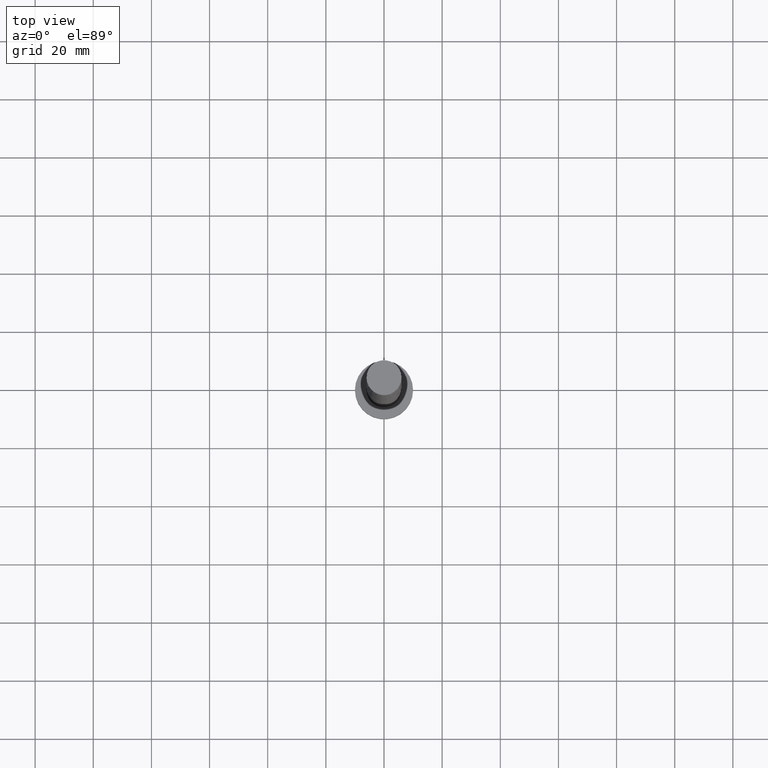
[diagram: clean part render]
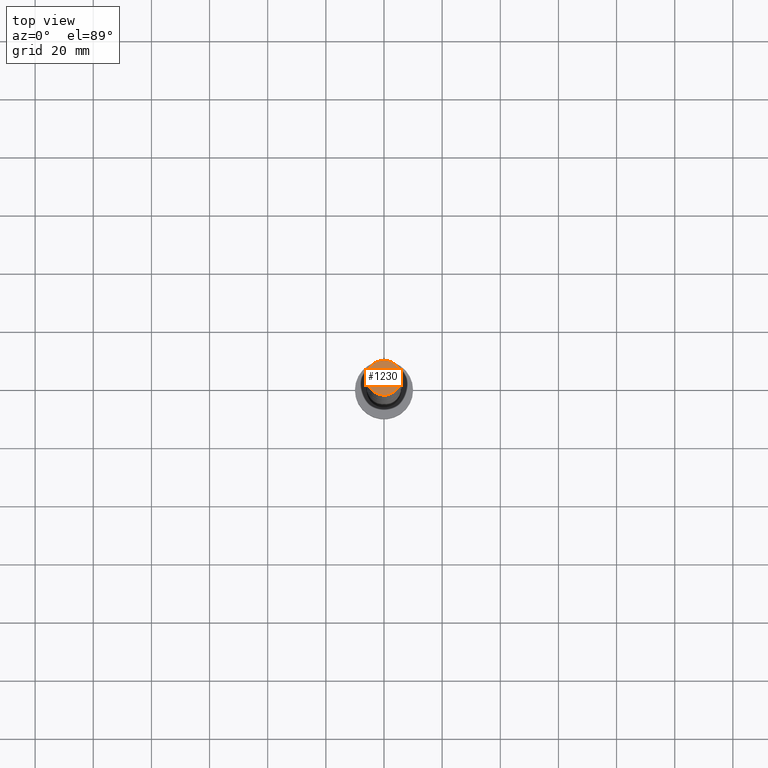
[diagram: same view with one face highlighted and labeled with its STEP entity id]
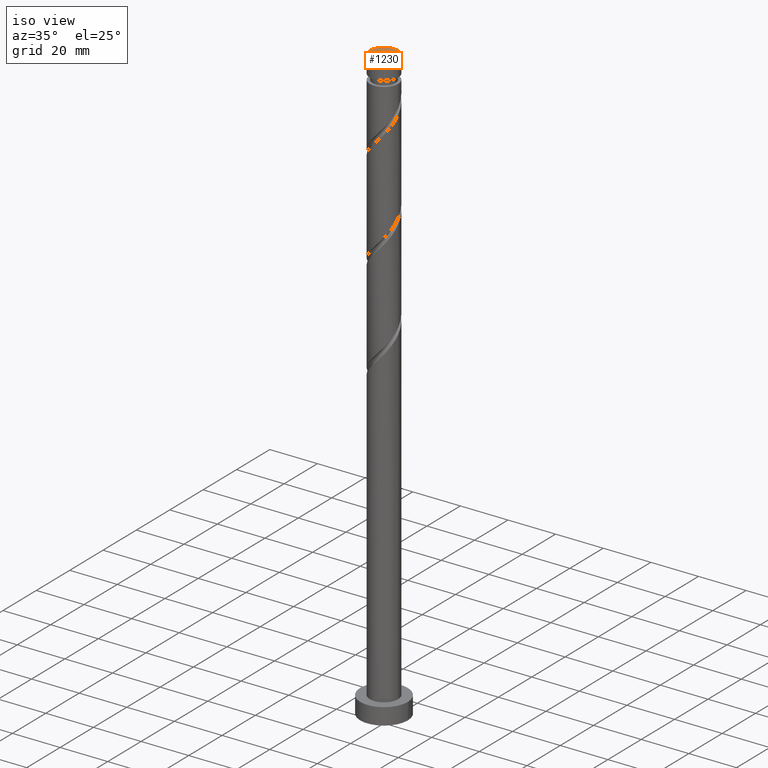
[diagram: same view with one face highlighted and labeled with its STEP entity id]
A machine part, top view. The second image highlights one B-rep face of the part: STEP entity #1230.
A second angle (iso view) of the same face is appended — the face is thin or edge-on in the first view.
In plain terms, the highlighted planar face has unit normal (0, 0, 1).
Its self-contained STEP definition (entity closure, byte-faithful):
#66 = DIRECTION ( 'NONE',  ( 1.000000000000000000, 0.000000000000000000, -0.000000000000000000 ) ) ;
#118 = VERTEX_POINT ( 'NONE', #1369 ) ;
#163 = ORIENTED_EDGE ( 'NONE', *, *, #528, .T. ) ;
#186 = AXIS2_PLACEMENT_3D ( 'NONE', #1762, #1221, #636 ) ;
#199 = VERTEX_POINT ( 'NONE', #949 ) ;
#478 = CARTESIAN_POINT ( 'NONE',  ( 0.000000000000000000, 0.000000000000000000, 250.0000000000000000 ) ) ;
#528 = EDGE_CURVE ( 'NONE', #118, #199, #772, .T. ) ;
#566 = DIRECTION ( 'NONE',  ( 0.000000000000000000, 0.000000000000000000, 1.000000000000000000 ) ) ;
#636 = DIRECTION ( 'NONE',  ( 1.000000000000000000, 0.000000000000000000, 0.000000000000000000 ) ) ;
#772 = CIRCLE ( 'NONE', #1186, 6.000000000000000888 ) ;
#949 = CARTESIAN_POINT ( 'NONE',  ( -6.000000000000000888, 0.000000000000000000, 250.0000000000000000 ) ) ;
#967 = ORIENTED_EDGE ( 'NONE', *, *, #1560, .T. ) ;
#1115 = DIRECTION ( 'NONE',  ( 1.000000000000000000, 0.000000000000000000, 0.000000000000000000 ) ) ;
#1186 = AXIS2_PLACEMENT_3D ( 'NONE', #1440, #566, #1115 ) ;
#1221 = DIRECTION ( 'NONE',  ( 0.000000000000000000, 0.000000000000000000, 1.000000000000000000 ) ) ;
#1230 = ADVANCED_FACE ( 'NONE', ( #1477 ), #1754, .T. ) ;
#1281 = AXIS2_PLACEMENT_3D ( 'NONE', #478, #1339, #66 ) ;
#1339 = DIRECTION ( 'NONE',  ( 0.000000000000000000, 0.000000000000000000, 1.000000000000000000 ) ) ;
#1369 = CARTESIAN_POINT ( 'NONE',  ( 6.000000000000000888, 7.347880794884120722E-16, 250.0000000000000000 ) ) ;
#1440 = CARTESIAN_POINT ( 'NONE',  ( 0.000000000000000000, 0.000000000000000000, 250.0000000000000000 ) ) ;
#1444 = EDGE_LOOP ( 'NONE', ( #967, #163 ) ) ;
#1477 = FACE_OUTER_BOUND ( 'NONE', #1444, .T. ) ;
#1560 = EDGE_CURVE ( 'NONE', #199, #118, #1610, .T. ) ;
#1610 = CIRCLE ( 'NONE', #186, 6.000000000000000888 ) ;
#1754 = PLANE ( 'NONE',  #1281 ) ;
#1762 = CARTESIAN_POINT ( 'NONE',  ( 0.000000000000000000, 0.000000000000000000, 250.0000000000000000 ) ) ;